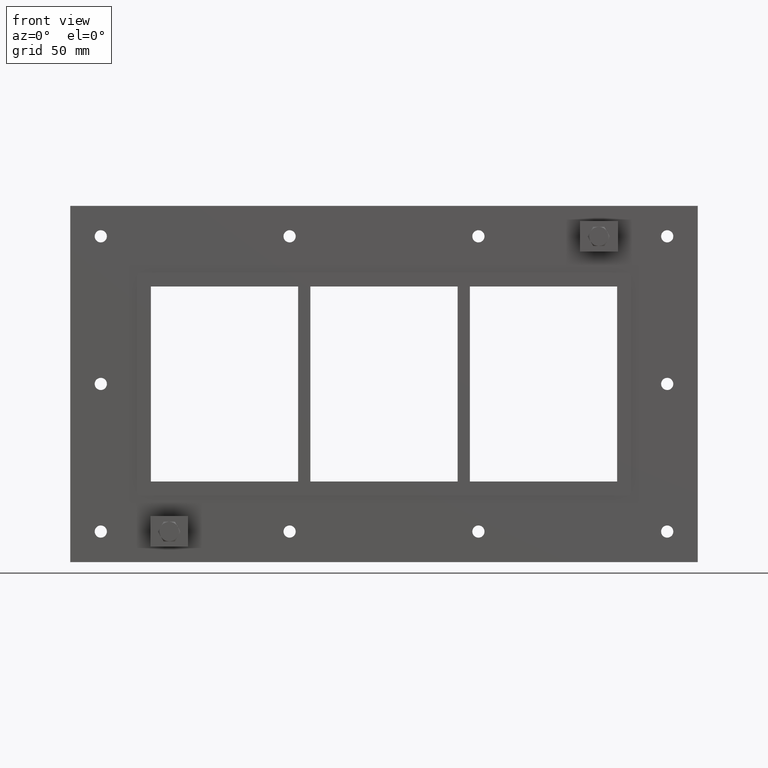
[diagram: clean part render]
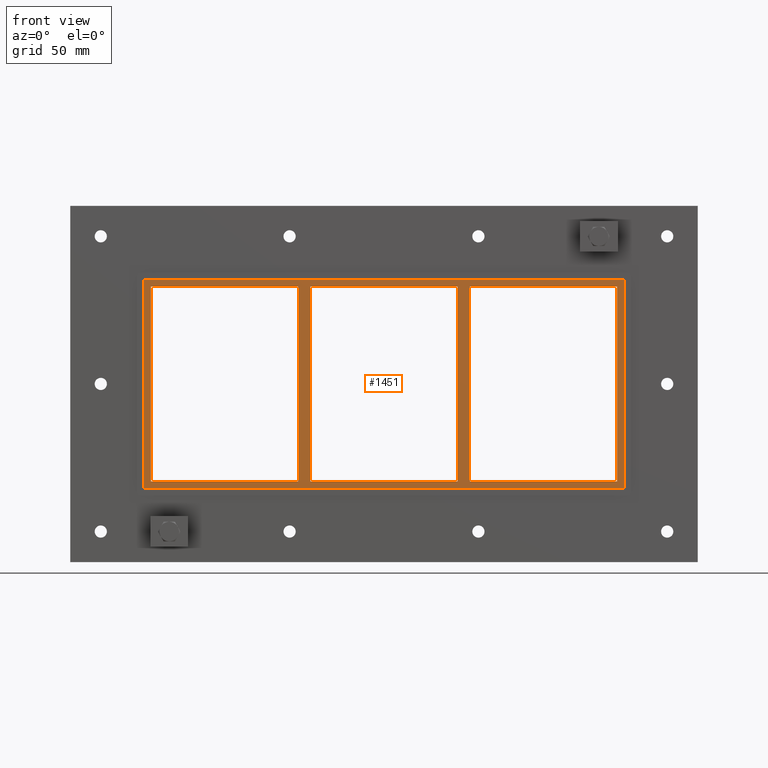
[diagram: same view with one face highlighted and labeled with its STEP entity id]
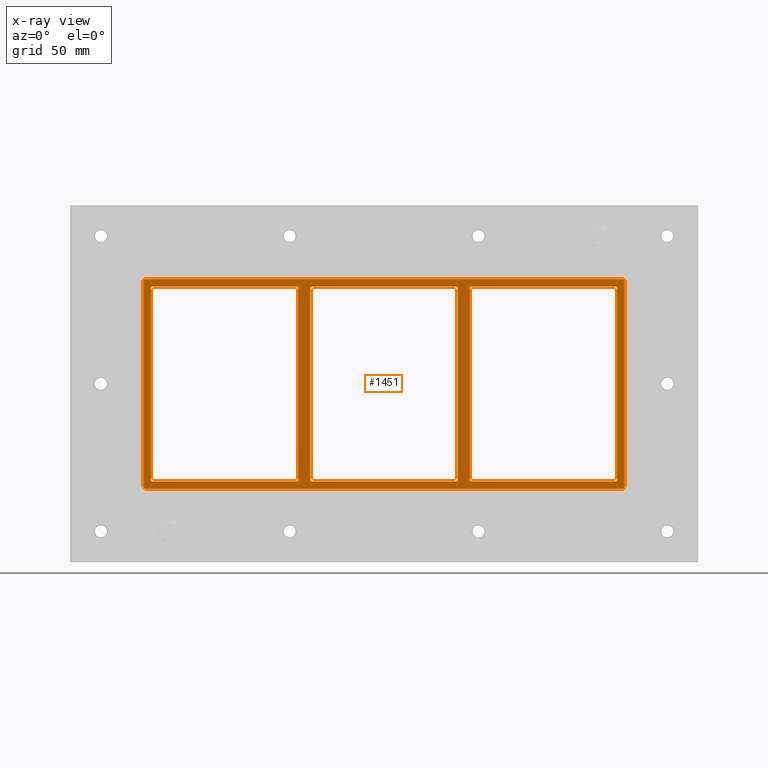
[diagram: x-ray of the same camera — body ghosted, the highlighted face saturated]
A machine part, front view. The second image highlights one B-rep face of the part: STEP entity #1451.
The next image is the same camera in x-ray: the body ghosted, the highlighted face saturated — about 0% of this face is hidden behind the body in this view.
In plain terms, the highlighted planar face has unit normal (0, 1, 0).
Its self-contained STEP definition (entity closure, byte-faithful):
#353=CARTESIAN_POINT('',(60.249999999999595,-3.0,-79.750000000000014));
#354=VERTEX_POINT('',#353);
#355=CARTESIAN_POINT('',(60.249999999999559,-3.0,79.749999999999972));
#356=VERTEX_POINT('',#355);
#357=CARTESIAN_POINT('',(60.249999999999595,-3.0,-79.750000000000014));
#358=DIRECTION('',(0.0,0.0,1.0));
#359=VECTOR('',#358,159.5);
#360=LINE('',#357,#359);
#361=EDGE_CURVE('',#354,#356,#360,.T.);
#393=CARTESIAN_POINT('',(70.250000000003638,-3.0,79.749999999999972));
#394=VERTEX_POINT('',#393);
#395=CARTESIAN_POINT('',(70.250000000003638,-3.0,-79.749999999981696));
#396=VERTEX_POINT('',#395);
#397=CARTESIAN_POINT('',(70.250000000003638,-3.0,79.749999999999972));
#398=DIRECTION('',(0.0,0.0,-1.0));
#399=VECTOR('',#398,159.49999999998167);
#400=LINE('',#397,#399);
#401=EDGE_CURVE('',#394,#396,#400,.T.);
#442=CARTESIAN_POINT('',(-60.249999999996362,-3.0,-79.749999999981696));
#443=VERTEX_POINT('',#442);
#450=CARTESIAN_POINT('',(60.249999999999602,-3.0,-79.750000000000014));
#451=DIRECTION('',(-1.0,0.0,0.0));
#452=VECTOR('',#451,120.49999999999596);
#453=LINE('',#450,#452);
#454=EDGE_CURVE('',#354,#443,#453,.T.);
#465=CARTESIAN_POINT('',(190.75000000000003,-3.0,-79.750000000000014));
#466=VERTEX_POINT('',#465);
#467=CARTESIAN_POINT('',(190.75000000000003,-3.0,-79.750000000000014));
#468=DIRECTION('',(-1.0,0.0,0.0));
#469=VECTOR('',#468,120.49999999999638);
#470=LINE('',#467,#469);
#471=EDGE_CURVE('',#466,#396,#470,.T.);
#504=CARTESIAN_POINT('',(190.75000000000003,-3.0,79.749999999999972));
#505=VERTEX_POINT('',#504);
#512=CARTESIAN_POINT('',(70.250000000003624,-3.0,79.749999999999943));
#513=DIRECTION('',(1.0,0.0,0.0));
#514=VECTOR('',#513,120.49999999999643);
#515=LINE('',#512,#514);
#516=EDGE_CURVE('',#394,#505,#515,.T.);
#527=CARTESIAN_POINT('',(-60.249999999996362,-3.0,79.749999999999972));
#528=VERTEX_POINT('',#527);
#529=CARTESIAN_POINT('',(-60.249999999996362,-3.0,79.749999999999943));
#530=DIRECTION('',(1.0,0.0,0.0));
#531=VECTOR('',#530,120.49999999999592);
#532=LINE('',#529,#531);
#533=EDGE_CURVE('',#528,#356,#532,.T.);
#557=CARTESIAN_POINT('',(-70.250000000000412,-3.0,-79.750000000000014));
#558=VERTEX_POINT('',#557);
#559=CARTESIAN_POINT('',(-70.250000000000455,-3.0,79.749999999999972));
#560=VERTEX_POINT('',#559);
#561=CARTESIAN_POINT('',(-70.250000000000412,-3.0,-79.750000000000014));
#562=DIRECTION('',(0.0,0.0,1.0));
#563=VECTOR('',#562,159.5);
#564=LINE('',#561,#563);
#565=EDGE_CURVE('',#558,#560,#564,.T.);
#597=CARTESIAN_POINT('',(-60.249999999996362,-3.0,79.749999999999972));
#598=DIRECTION('',(0.0,0.0,-1.0));
#599=VECTOR('',#598,159.49999999998167);
#600=LINE('',#597,#599);
#601=EDGE_CURVE('',#528,#443,#600,.T.);
#628=CARTESIAN_POINT('',(-190.75000000000011,-3.0,-79.750000000000014));
#629=VERTEX_POINT('',#628);
#636=CARTESIAN_POINT('',(-70.250000000000426,-3.0,-79.750000000000014));
#637=DIRECTION('',(-1.0,0.0,0.0));
#638=VECTOR('',#637,120.49999999999969);
#639=LINE('',#636,#638);
#640=EDGE_CURVE('',#558,#629,#639,.T.);
#651=CARTESIAN_POINT('',(-190.75000000000011,-3.0,79.749999999999972));
#652=VERTEX_POINT('',#651);
#653=CARTESIAN_POINT('',(-190.75000000000011,-3.0,79.749999999999943));
#654=DIRECTION('',(1.0,0.0,0.0));
#655=VECTOR('',#654,120.49999999999966);
#656=LINE('',#653,#655);
#657=EDGE_CURVE('',#652,#560,#656,.T.);
#1037=CARTESIAN_POINT('',(-190.75000000000011,-3.0,-79.750000000000014));
#1038=DIRECTION('',(0.0,0.0,1.0));
#1039=VECTOR('',#1038,159.5);
#1040=LINE('',#1037,#1039);
#1041=EDGE_CURVE('',#629,#652,#1040,.T.);
#1052=CARTESIAN_POINT('',(194.75,-3.0,-85.750000000000028));
#1053=VERTEX_POINT('',#1052);
#1060=CARTESIAN_POINT('',(-194.75000000000006,-3.0,-85.750000000000028));
#1061=VERTEX_POINT('',#1060);
#1062=CARTESIAN_POINT('',(-194.75000000000006,-3.0,-85.750000000000028));
#1063=DIRECTION('',(1.0,0.0,0.0));
#1064=VECTOR('',#1063,389.50000000000006);
#1065=LINE('',#1062,#1064);
#1066=EDGE_CURVE('',#1061,#1053,#1065,.T.);
#1114=CARTESIAN_POINT('',(196.75,-3.0,-83.750000000000028));
#1115=VERTEX_POINT('',#1114);
#1122=CARTESIAN_POINT('',(194.75,-3.0,-83.750000000000028));
#1123=DIRECTION('',(0.0,1.0,0.0));
#1124=DIRECTION('',(0.707106781186554,0.0,-0.707106781186541));
#1125=AXIS2_PLACEMENT_3D('',#1122,#1123,#1124);
#1126=CIRCLE('',#1125,2.0);
#1127=EDGE_CURVE('',#1115,#1053,#1126,.T.);
#1164=CARTESIAN_POINT('',(196.75,-3.0,83.750000000000028));
#1165=VERTEX_POINT('',#1164);
#1172=CARTESIAN_POINT('',(196.75,-3.0,-83.750000000000028));
#1173=DIRECTION('',(0.0,0.0,1.0));
#1174=VECTOR('',#1173,167.50000000000006);
#1175=LINE('',#1172,#1174);
#1176=EDGE_CURVE('',#1115,#1165,#1175,.T.);
#1189=CARTESIAN_POINT('',(-196.75000000000009,-3.0,-83.750000000000028));
#1190=VERTEX_POINT('',#1189);
#1191=CARTESIAN_POINT('',(-194.75000000000009,-3.0,-83.750000000000028));
#1192=DIRECTION('',(0.0,1.0,0.0));
#1193=DIRECTION('',(-0.707106781186554,0.0,-0.707106781186541));
#1194=AXIS2_PLACEMENT_3D('',#1191,#1192,#1193);
#1195=CIRCLE('',#1194,2.0);
#1196=EDGE_CURVE('',#1061,#1190,#1195,.T.);
#1238=CARTESIAN_POINT('',(194.74999999999997,-3.0,85.750000000000028));
#1239=VERTEX_POINT('',#1238);
#1246=CARTESIAN_POINT('',(194.75,-3.0,83.750000000000028));
#1247=DIRECTION('',(0.0,1.0,0.0));
#1248=DIRECTION('',(0.707106781186554,0.0,0.707106781186541));
#1249=AXIS2_PLACEMENT_3D('',#1246,#1247,#1248);
#1250=CIRCLE('',#1249,2.0);
#1251=EDGE_CURVE('',#1239,#1165,#1250,.T.);
#1264=CARTESIAN_POINT('',(-196.75000000000009,-3.0,83.750000000000028));
#1265=VERTEX_POINT('',#1264);
#1266=CARTESIAN_POINT('',(-196.75000000000009,-3.0,83.750000000000028));
#1267=DIRECTION('',(0.0,0.0,-1.0));
#1268=VECTOR('',#1267,167.50000000000006);
#1269=LINE('',#1266,#1268);
#1270=EDGE_CURVE('',#1265,#1190,#1269,.T.);
#1311=CARTESIAN_POINT('',(-194.75000000000009,-3.0,85.750000000000028));
#1312=VERTEX_POINT('',#1311);
#1319=CARTESIAN_POINT('',(194.74999999999997,-3.0,85.750000000000028));
#1320=DIRECTION('',(-1.0,0.0,0.0));
#1321=VECTOR('',#1320,389.50000000000006);
#1322=LINE('',#1319,#1321);
#1323=EDGE_CURVE('',#1239,#1312,#1322,.T.);
#1336=CARTESIAN_POINT('',(-194.75000000000009,-3.0,83.750000000000028));
#1337=DIRECTION('',(0.0,1.0,0.0));
#1338=DIRECTION('',(-0.707106781186554,0.0,0.707106781186541));
#1339=AXIS2_PLACEMENT_3D('',#1336,#1337,#1338);
#1340=CIRCLE('',#1339,2.0);
#1341=EDGE_CURVE('',#1265,#1312,#1340,.T.);
#1413=CARTESIAN_POINT('',(-3.500838E-014,-3.0,0.0));
#1414=DIRECTION('',(0.0,1.0,0.0));
#1415=DIRECTION('',(0.0,0.0,1.0));
#1416=AXIS2_PLACEMENT_3D('',#1413,#1414,#1415);
#1417=PLANE('',#1416);
#1418=ORIENTED_EDGE('',*,*,#1196,.F.);
#1419=ORIENTED_EDGE('',*,*,#1066,.T.);
#1420=ORIENTED_EDGE('',*,*,#1127,.F.);
#1421=ORIENTED_EDGE('',*,*,#1176,.T.);
#1422=ORIENTED_EDGE('',*,*,#1251,.F.);
#1423=ORIENTED_EDGE('',*,*,#1323,.T.);
#1424=ORIENTED_EDGE('',*,*,#1341,.F.);
#1425=ORIENTED_EDGE('',*,*,#1270,.T.);
#1426=EDGE_LOOP('',(#1418,#1419,#1420,#1421,#1422,#1423,#1424,#1425));
#1427=FACE_OUTER_BOUND('',#1426,.T.);
#1428=ORIENTED_EDGE('',*,*,#454,.T.);
#1429=ORIENTED_EDGE('',*,*,#601,.F.);
#1430=ORIENTED_EDGE('',*,*,#533,.T.);
#1431=ORIENTED_EDGE('',*,*,#361,.F.);
#1432=EDGE_LOOP('',(#1428,#1429,#1430,#1431));
#1433=FACE_BOUND('',#1432,.T.);
#1434=ORIENTED_EDGE('',*,*,#640,.T.);
#1435=ORIENTED_EDGE('',*,*,#1041,.T.);
#1436=ORIENTED_EDGE('',*,*,#657,.T.);
#1437=ORIENTED_EDGE('',*,*,#565,.F.);
#1438=EDGE_LOOP('',(#1434,#1435,#1436,#1437));
#1439=FACE_BOUND('',#1438,.T.);
#1440=ORIENTED_EDGE('',*,*,#401,.F.);
#1441=ORIENTED_EDGE('',*,*,#516,.T.);
#1442=CARTESIAN_POINT('',(190.75000000000003,-3.0,79.749999999999972));
#1443=DIRECTION('',(0.0,0.0,-1.0));
#1444=VECTOR('',#1443,159.5);
#1445=LINE('',#1442,#1444);
#1446=EDGE_CURVE('',#505,#466,#1445,.T.);
#1447=ORIENTED_EDGE('',*,*,#1446,.T.);
#1448=ORIENTED_EDGE('',*,*,#471,.T.);
#1449=EDGE_LOOP('',(#1440,#1441,#1447,#1448));
#1450=FACE_BOUND('',#1449,.T.);
#1451=ADVANCED_FACE('',(#1427,#1433,#1439,#1450),#1417,.F.);